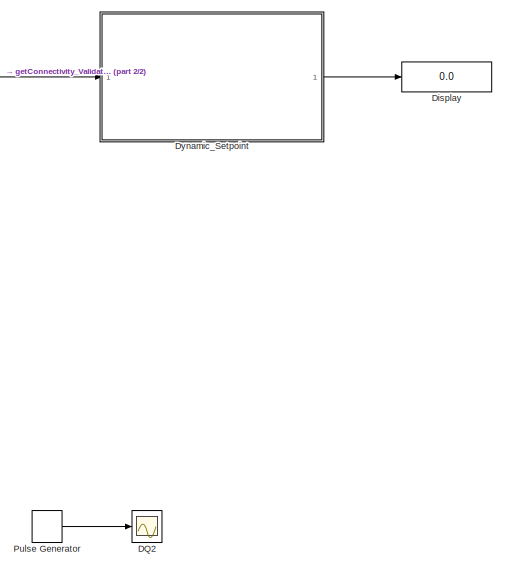
[diagram: root canvas - part 1/2, right side, full height]
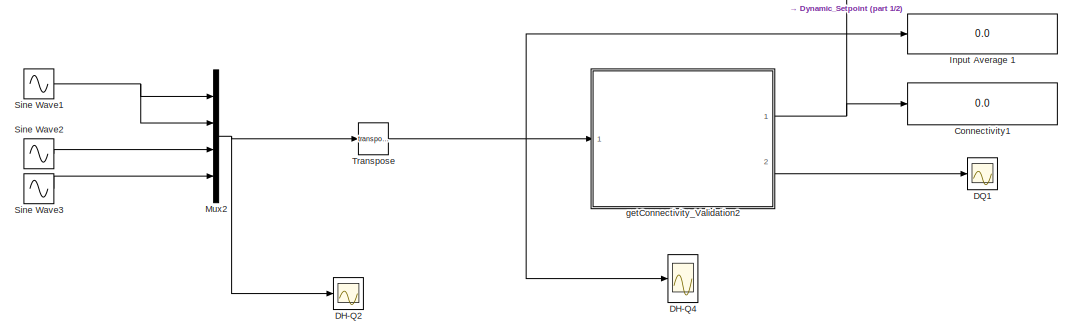
[diagram: root canvas - part 2/2, bottom left region]
MODEL slx_372f3b65a6ff
KIND model
CONFIG AbsTol = auto
CONFIG EnableMultiTasking = off
CONFIG FixedStep = auto
CONFIG MaxStep = auto
CONFIG MinStep = auto
CONFIG RelTol = 1e-3
CONFIG SampleTimeConstraint = Unconstrained
CONFIG SolverName = VariableStepAuto
CONFIG StartTime = 0.0
CONFIG StopTime = 30
BLOCK [Display] Connectivity1
  Decimation = 1
  Ports = [1]
BLOCK [Scope] DH-Q2
  Floating = off
  NumInputPorts = 1
  Ports = [1]
  ScopeSpecificationString = Simulink.scopes.TimeScopeBlockCfg('CurrentConfiguration', extmgr.ConfigurationSet(extmgr.Configuration('Core','General UI',true),extmgr.Configuration('Core','Source UI',true),extmgr.Configuration('Sources','WiredSimulink',true,'DataLoggingVariableName','ScopeData1'),extmgr.Configuration('Visuals','Time Domain',true,'SerializedDisplays',{struct('MinYLimReal','-1.5','MaxYLimReal','1.5','YLabelReal',...<+1391ch>
BLOCK [Scope] DH-Q4
  Floating = off
  NumInputPorts = 1
  Ports = [1]
  ScopeSpecificationString = Simulink.scopes.TimeScopeBlockCfg('CurrentConfiguration', extmgr.ConfigurationSet(extmgr.Configuration('Core','General UI',true),extmgr.Configuration('Core','Source UI',true),extmgr.Configuration('Sources','WiredSimulink',true,'DataLoggingVariableName','ScopeData2'),extmgr.Configuration('Visuals','Time Domain',true,'SerializedDisplays',{struct('MinYLimReal','-0.18735','MaxYLimReal','0.24348','YLab...<+1486ch>
BLOCK [Scope] DQ1
  Floating = off
  NumInputPorts = 1
  Ports = [1]
  ScopeSpecificationString = Simulink.scopes.TimeScopeBlockCfg('CurrentConfiguration', extmgr.ConfigurationSet(extmgr.Configuration('Core','General UI',true,'FigureColor',[0 0 0]),extmgr.Configuration('Core','Source UI',true),extmgr.Configuration('Sources','WiredSimulink',true),extmgr.Configuration('Visuals','Time Domain',true,'SerializedDisplays',{struct('MinYLimReal','-1.45861','MaxYLimReal','1.4954','YLabelReal','','MinYLi...<+2060ch>
BLOCK [Scope] DQ2
  Floating = off
  NumInputPorts = 1
  Ports = [1]
  ScopeSpecificationString = Simulink.scopes.TimeScopeBlockCfg('CurrentConfiguration', extmgr.ConfigurationSet(extmgr.Configuration('Core','General UI',true,'FigureColor',[0 0 0]),extmgr.Configuration('Core','Source UI',true),extmgr.Configuration('Sources','WiredSimulink',true,'DataLoggingVariableName','ScopeData3'),extmgr.Configuration('Visuals','Time Domain',true,'SerializedDisplays',{struct('MinYLimReal','-0.125','MaxYLimR...<+2039ch>
BLOCK [Display] Display
  Decimation = 1
  Ports = [1]
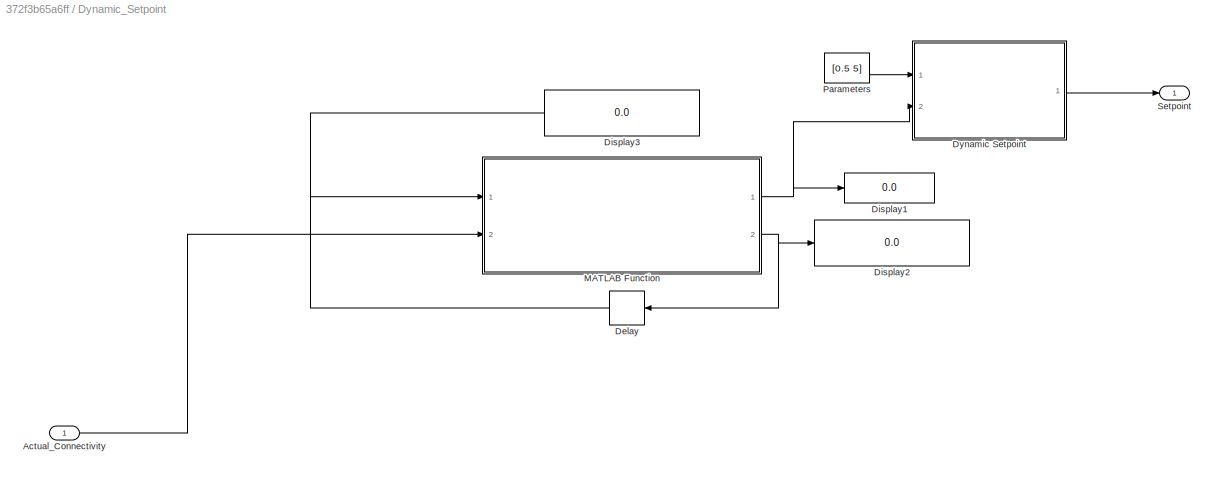
BLOCK [SubSystem] Dynamic_Setpoint
  Ports = [1, 1]
  RequestExecContextInheritance = off
BLOCK [Inport] Dynamic_Setpoint/Actual_Connectivity
BLOCK [Delay] Dynamic_Setpoint/Delay
  DelayLength = 1
  InputPortMap = u0
  Ports = [1, 1]
BLOCK [Display] Dynamic_Setpoint/Display1
  Decimation = 1
  Ports = [1]
BLOCK [Display] Dynamic_Setpoint/Display2
  Decimation = 1
  Ports = [1]
BLOCK [Display] Dynamic_Setpoint/Display3
  Decimation = 1
  Ports = [1]
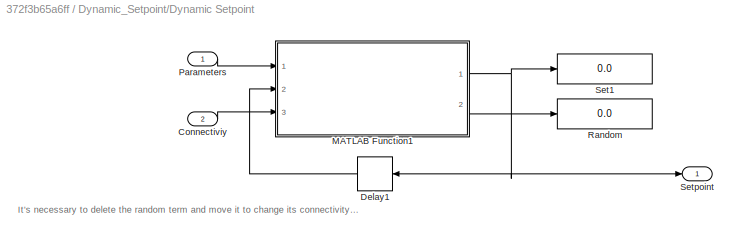
BLOCK [SubSystem] Dynamic_Setpoint/Dynamic Setpoint
  Ports = [2, 1]
  RequestExecContextInheritance = off
BLOCK [Inport] Dynamic_Setpoint/Dynamic Setpoint/Connectiviy
  Port = 2
BLOCK [Delay] Dynamic_Setpoint/Dynamic Setpoint/Delay1
  DelayLength = 1
  InitialCondition = 0
  InputPortMap = u0
  Ports = [1, 1]
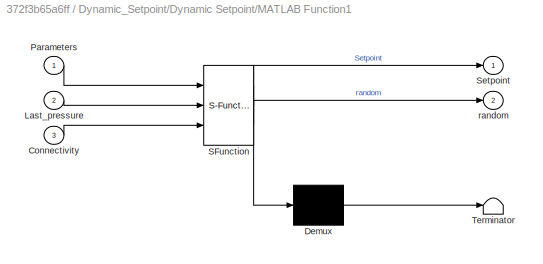
BLOCK [SubSystem] Dynamic_Setpoint/Dynamic Setpoint/MATLAB Function1
  ErrorFcn = Stateflow.Translate.translate
  PermitHierarchicalResolution = ExplicitOnly
  Ports = [3, 2]
  RequestExecContextInheritance = off
  SFBlockType = MATLAB Function
  TreatAsAtomicUnit = on
BLOCK [Demux] Dynamic_Setpoint/Dynamic Setpoint/MATLAB Function1/ Demux 
  Outputs = 1
  Ports = [1, 1]
BLOCK [S-Function] Dynamic_Setpoint/Dynamic Setpoint/MATLAB Function1/ SFunction 
  EnableBusSupport = on
  FunctionName = sf_sfun
  PortCounts = [3 3]
  Ports = [3, 3]
  SFcnIsStateOwnerBlock = off
  SFunctionDeploymentMode = off
  Tag = Stateflow S-Function 11
BLOCK [Terminator] Dynamic_Setpoint/Dynamic Setpoint/MATLAB Function1/ Terminator 
BLOCK [Inport] Dynamic_Setpoint/Dynamic Setpoint/MATLAB Function1/Connectivity
  Port = 3
BLOCK [Inport] Dynamic_Setpoint/Dynamic Setpoint/MATLAB Function1/Last_pressure
  Port = 2
BLOCK [Inport] Dynamic_Setpoint/Dynamic Setpoint/MATLAB Function1/Parameters
BLOCK [Outport] Dynamic_Setpoint/Dynamic Setpoint/MATLAB Function1/Setpoint
BLOCK [Outport] Dynamic_Setpoint/Dynamic Setpoint/MATLAB Function1/random
  Port = 2
BLOCK [Inport] Dynamic_Setpoint/Dynamic Setpoint/Parameters
BLOCK [Display] Dynamic_Setpoint/Dynamic Setpoint/Random
  Decimation = 1
  Ports = [1]
BLOCK [Display] Dynamic_Setpoint/Dynamic Setpoint/Set1
  Decimation = 1
  Ports = [1]
BLOCK [Outport] Dynamic_Setpoint/Dynamic Setpoint/Setpoint
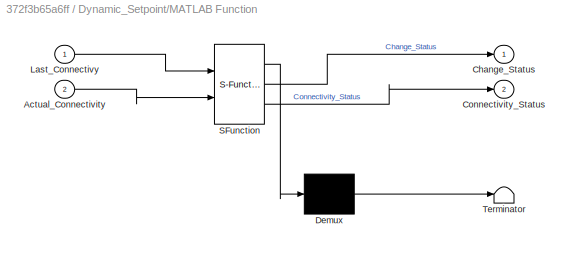
BLOCK [SubSystem] Dynamic_Setpoint/MATLAB Function
  ErrorFcn = Stateflow.Translate.translate
  PermitHierarchicalResolution = ExplicitOnly
  Ports = [2, 2]
  RequestExecContextInheritance = off
  SFBlockType = MATLAB Function
  TreatAsAtomicUnit = on
BLOCK [Demux] Dynamic_Setpoint/MATLAB Function/ Demux 
  Outputs = 1
  Ports = [1, 1]
BLOCK [S-Function] Dynamic_Setpoint/MATLAB Function/ SFunction 
  EnableBusSupport = on
  FunctionName = sf_sfun
  PortCounts = [2 3]
  Ports = [2, 3]
  SFcnIsStateOwnerBlock = off
  SFunctionDeploymentMode = off
  Tag = Stateflow S-Function 2
BLOCK [Terminator] Dynamic_Setpoint/MATLAB Function/ Terminator 
BLOCK [Inport] Dynamic_Setpoint/MATLAB Function/Actual_Connectivity
  Port = 2
BLOCK [Outport] Dynamic_Setpoint/MATLAB Function/Change_Status
BLOCK [Outport] Dynamic_Setpoint/MATLAB Function/Connectivity_Status
  Port = 2
BLOCK [Inport] Dynamic_Setpoint/MATLAB Function/Last_Connectivy
BLOCK [Constant] Dynamic_Setpoint/Parameters
  Value = [0.5 5]
BLOCK [Outport] Dynamic_Setpoint/Setpoint
BLOCK [Display] Input Average 1
  Decimation = 1
  Ports = [1]
BLOCK [Mux] Mux2
  DisplayOption = bar
  Ports = [4, 1]
BLOCK [DiscretePulseGenerator] Pulse Generator
  Period = 10
  Ports = [0, 1]
  PulseType = Time based
  PulseWidth = 5
BLOCK [Sin] Sine Wave1
  Amplitude = 1.2
  Ports = [0, 1]
  SampleTime = 0
BLOCK [Sin] Sine Wave2
  Frequency = 1.4
  Ports = [0, 1]
  SampleTime = 0
BLOCK [Sin] Sine Wave3
  Frequency = 1.4
  Ports = [0, 1]
  SampleTime = 0
BLOCK [Math] Transpose
  Operator = transpose
  Ports = [1, 1]
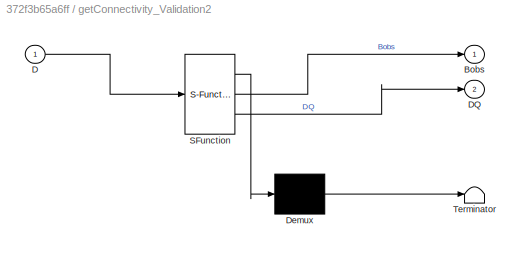
BLOCK [SubSystem] getConnectivity_Validation2
  ErrorFcn = Stateflow.Translate.translate
  PermitHierarchicalResolution = ExplicitOnly
  Ports = [1, 2]
  RequestExecContextInheritance = off
  SFBlockType = MATLAB Function
  SystemSampleTime = 0
  TreatAsAtomicUnit = on
BLOCK [Demux] getConnectivity_Validation2/ Demux 
  Outputs = 1
  Ports = [1, 1]
BLOCK [S-Function] getConnectivity_Validation2/ SFunction 
  EnableBusSupport = on
  FunctionName = sf_sfun
  PortCounts = [1 3]
  Ports = [1, 3]
  SFcnIsStateOwnerBlock = off
  SFunctionDeploymentMode = off
  Tag = Stateflow S-Function 6
BLOCK [Terminator] getConnectivity_Validation2/ Terminator 
BLOCK [Outport] getConnectivity_Validation2/Bobs
BLOCK [Inport] getConnectivity_Validation2/D 
BLOCK [Outport] getConnectivity_Validation2/DQ
  Port = 2
ANNOTATION Dynamic_Setpoint/Dynamic Setpoint: It’s necessary to delete the random term and move it to change its connectivity changes.
LINE Dynamic_Setpoint/Actual_Connectivity:1 -> Dynamic_Setpoint/MATLAB Function:2
NET Dynamic_Setpoint/Delay:1 -> Dynamic_Setpoint/Display3:1, Dynamic_Setpoint/MATLAB Function:1
LINE Dynamic_Setpoint/Dynamic Setpoint/Connectiviy:1 -> Dynamic_Setpoint/Dynamic Setpoint/MATLAB Function1:3
LINE Dynamic_Setpoint/Dynamic Setpoint/Delay1:1 -> Dynamic_Setpoint/Dynamic Setpoint/MATLAB Function1:2
NET Dynamic_Setpoint/Dynamic Setpoint/MATLAB Function1:1 -> Dynamic_Setpoint/Dynamic Setpoint/Delay1:1, Dynamic_Setpoint/Dynamic Setpoint/Set1:1, Dynamic_Setpoint/Dynamic Setpoint/Setpoint:1
LINE Dynamic_Setpoint/Dynamic Setpoint/MATLAB Function1:2 -> Dynamic_Setpoint/Dynamic Setpoint/Random:1
LINE Dynamic_Setpoint/Dynamic Setpoint/Parameters:1 -> Dynamic_Setpoint/Dynamic Setpoint/MATLAB Function1:1
LINE Dynamic_Setpoint/Dynamic Setpoint:1 -> Dynamic_Setpoint/Setpoint:1
NET Dynamic_Setpoint/MATLAB Function:1 -> Dynamic_Setpoint/Display1:1, Dynamic_Setpoint/Dynamic Setpoint:2
NET Dynamic_Setpoint/MATLAB Function:2 -> Dynamic_Setpoint/Delay:1, Dynamic_Setpoint/Display2:1
LINE Dynamic_Setpoint/Parameters:1 -> Dynamic_Setpoint/Dynamic Setpoint:1
LINE Dynamic_Setpoint:1 -> Display:1
NET Mux2:1 -> DH-Q2:1, Transpose:1
LINE Pulse Generator:1 -> DQ2:1
NET Sine Wave1:1 -> Mux2:1, Mux2:2
LINE Sine Wave2:1 -> Mux2:3
LINE Sine Wave3:1 -> Mux2:4
NET Transpose:1 -> DH-Q4:1, Input Average 1:1, getConnectivity_Validation2:1
NET getConnectivity_Validation2:1 -> Connectivity1:1, Dynamic_Setpoint:1
LINE getConnectivity_Validation2:2 -> DQ1:1
note: NET lines group one-source signal fan-out (src -> all destinations, sorted); 1:1 wires keep LINE
CHART Dynamic_Setpoint/MATLAB Function states=1 transitions=1
  STATE_LABEL 'eML_blk_kernel()'
  STATE_LABEL 'SCRIPT:\nfunction [Change_Status, Connectivity_Status] = Connectivity_Changes(Last_Connectivy , Actual_Connectivity)\n\nif(Actual_Connectivity == Last_Connectivy)\n    Change_Status = 0;\n    \nelse\n    Change_Status = 1;\nend\n\nConnectivity_Status = Actual_Connectivity;\n\n'
CHART getConnectivity_Validation2 states=1 transitions=1
  STATE_LABEL 'eML_blk_kernel()'
  STATE_LABEL 'SCRIPT:\nfunction [Bobs,DQ]  = getConnectivity(D)\n\n    DQ = zeros(1, 2);\n    DQ(1,1)=D(1,1);\n    DQ(1,2)=D(1,2);\n\n\n    DH = zeros(1,2);\n    DH(1,1)=D(1,3);\n    DH(1,2)=D(1,4);\n\n    rThresh= 0.6; % [0..1] A threshold on the correlation.\n\n    [nSamples, nChannels, nHb]=size(DQ);\n\n    C = nan(nChannels, nChannels, nHb); %Matrix of channel pairwise correlations;\n\n    %This part of the algorithm is HIGH...<+579ch>'
CHART Dynamic_Setpoint/Dynamic Setpoint/MATLAB Function1 states=1 transitions=1
  STATE_LABEL 'eML_blk_kernel()'
  STATE_LABEL 'SCRIPT:\nfunction [Setpoint, random] = Random_Setpoint(Parameters, Last_pressure, Connectivity)\n    %Parameters = [threshold Start_setpoint]\n    temp = 0;\n   %Pressure Setpoint selection\n    pmin = 5;\n    pmax = 8;\n    new_pressure = pmin + rand(1)*(pmax-pmin);\n\n    %Random used to simulate the connectivity changes, so we must change\n    %the pressure setpoint when changes in the connectitvy are ob...<+792ch>'
CHART  states=0 transitions=0
CHART  states=0 transitions=0
CHART  states=0 transitions=0
